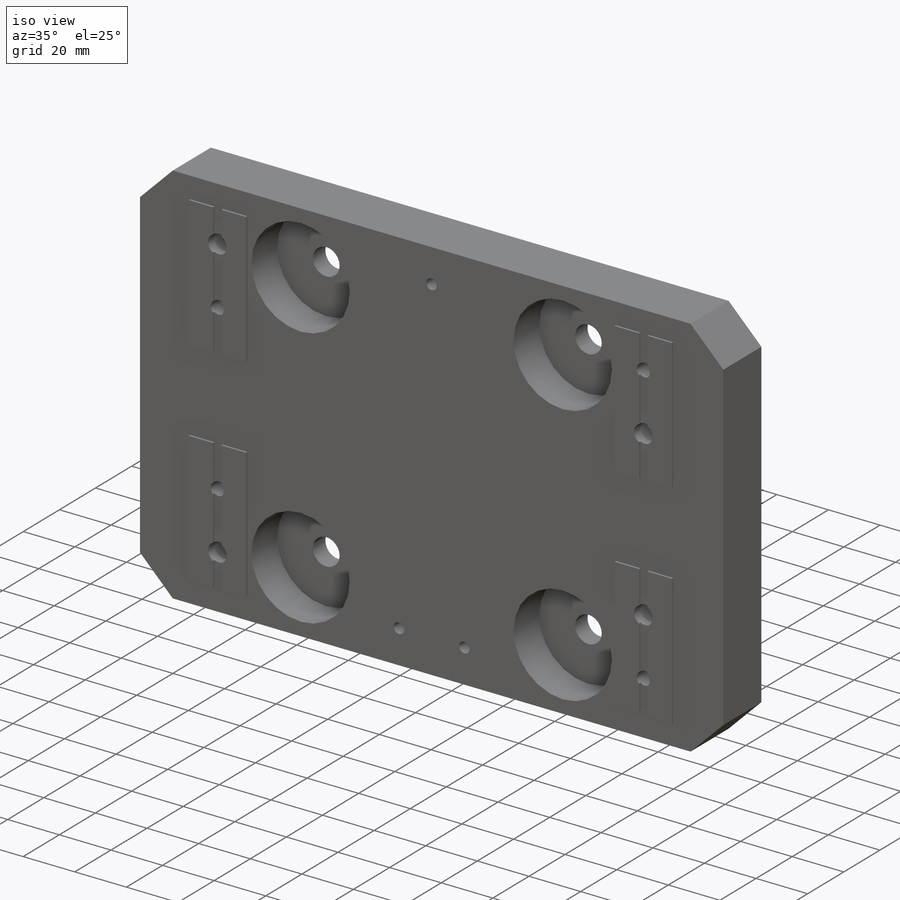
[diagram: iso view]
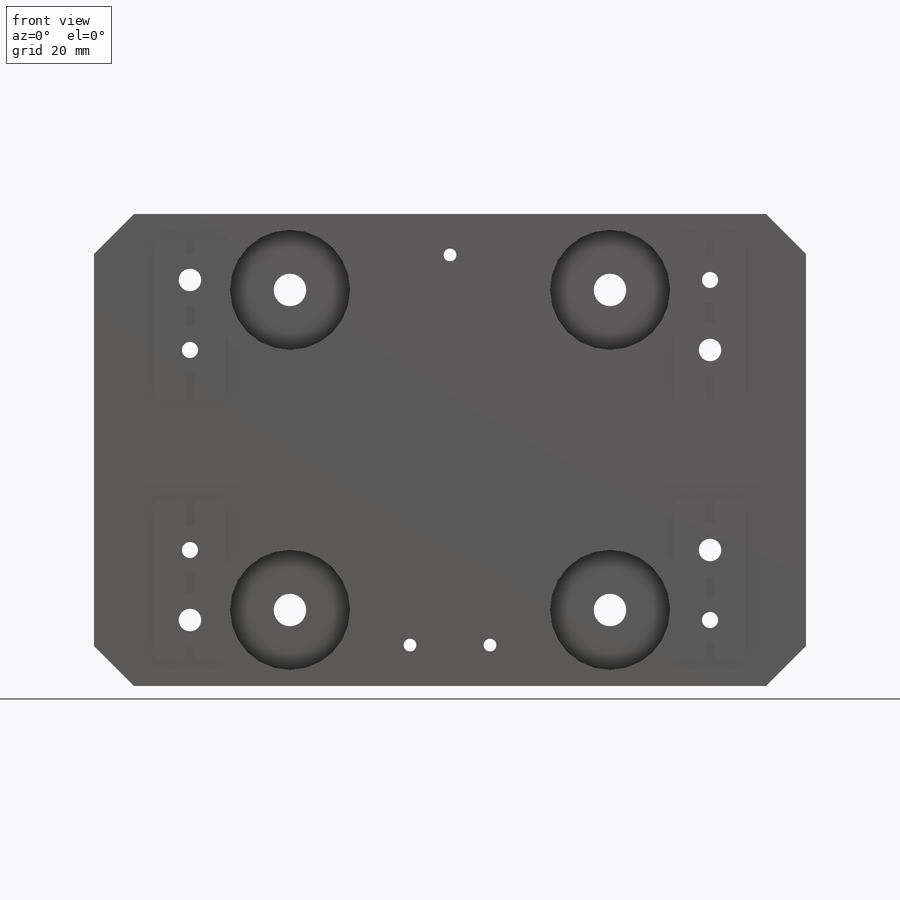
[diagram: front view]
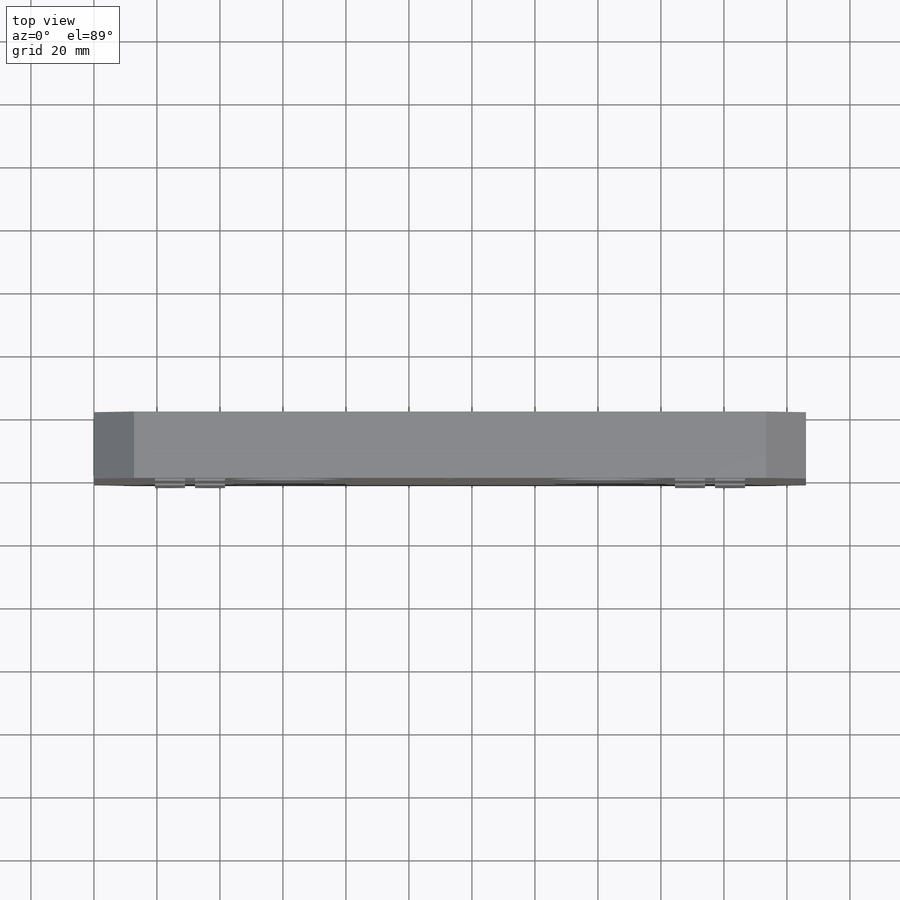
[diagram: top view]
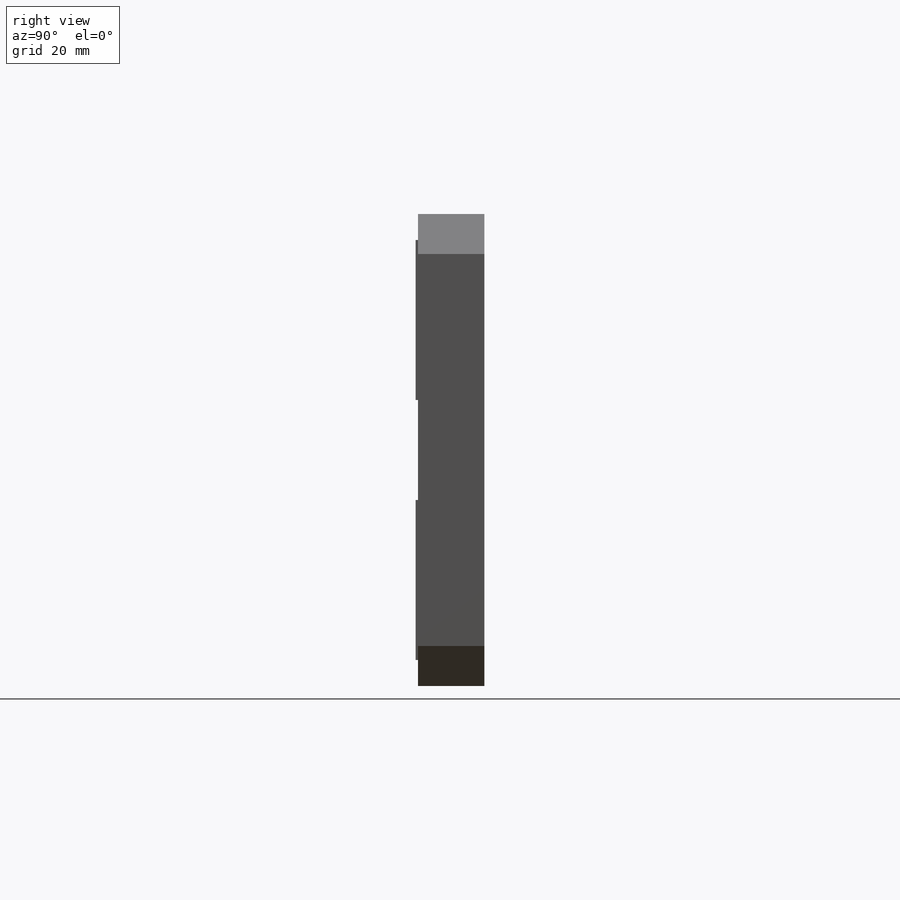
[diagram: right view]
SOLIDWORKS PART (.sldprt)
format: sldprt  version: not decoded by parser v0  size: 581,120 bytes
history: native  units: mm
features: sketch x12, thread x7, hole x4, cut_extrude x2, material x1, extrude x1, chamfer x1 + 1 further entry (+13 scaffold rows collapsed)
feature tree (42):
  scaffold x13  (default folders/planes/origin — collapsed)
  material  "AISI 304"
  "Origin"  ID=-1
  sketch  "Sketch3"  dims[D1=226.06mm D2=149.86mm]
  extrude  "Extrude2"  Depth=21.844mm
  sketch  "Sketch4"  dims[c1.D1=25.4mm c1.D2=25.4mm c1.D3=82.55mm c1.D4=82.55mm c1.D5=41.275mm c2.D3=165.1mm c2.D5=15.875mm c2.D6=15.875mm c2.D7=50.8mm c2.D8=50.8mm c2.D9=71.4248mm c2.D10=71.4248mm c2.D11=25.4mm c2.D12=22.225mm c2.D13=25.4mm c2.D2=25.4mm]
  cut_extrude  "Extrude4"  Depth=0.762mm
  hole  "1/4-20 Tapped Hole1"  Diameter=5.1054mm Depth=21.844mm
  sketch  "Sketch13"  dims[D1=82.55mm D2=82.55mm D3=107.95mm D4=63.5mm]
  sketch  "Sketch12"  dims[hole-wizard template sketch: 60 standard entries collapsed; hole parameters kept: c18.Thru Tap Drill Depth=21.844mm]
  thread  "Hole Thread5"  Diameter=6.35mm  [1 undecoded]
  thread  "Hole Thread6"  Diameter=6.35mm  [1 undecoded]
  thread  "Hole Thread7"  Diameter=6.35mm  [1 undecoded]
  thread  "Hole Thread8"  Diameter=6.35mm  [1 undecoded]
  hole  "CBORE for 3/8 Socket Head Cap Screw1"  Diameter=10.31748mm Depth=21.082mm
  sketch  "Sketch16"  dims[D1=101.6mm D2=101.6mm]
  sketch  "Sketch15"  dims[hole-wizard template sketch: 42 standard entries collapsed; hole parameters kept: c12.Thru Hole Depth=21.082mm c12.C'Bore Dia.=38.1mm c12.C'Bore Depth=14.224mm]
  sketch  "Sketch17"  dims[D1=3.175mm]
  cut_extrude  "Cut-Extrude1"  [1 undecoded]
  hole  "CBORE for 1/4 Socket Head Cap Screw1"  Diameter=7.14248mm Depth=21.844mm
  sketch  "Sketch20"
  sketch  "Sketch19"  dims[hole-wizard template sketch: 42 standard entries collapsed; hole parameters kept: c12.Thru Hole Depth=21.844mm c12.C'Bore Dia.=11.1125mm c12.C'Bore Depth=18.161mm c12.Near C'Sink Dia.=12.3825mm c12.D6=~4.399409mm c12.Near C'Sink Angle=90.0deg]
  sketch  "Sketch23"  dims[c1.D1=63.5mm c1.D2=63.5mm c2.D1=60.325mm c2.D2=12.7mm c2.D3=12.7mm c2.D4=60.325mm c3.D2=12.7mm c3.D3=12.7mm c4.D2=25.4mm c4.D1=15.875mm c4.D4=61.9252mm c5.D1=15.875mm c5.D3=61.9252mm]
  hole  "#10-32 Tapped Hole1"  Diameter=4.0386mm Depth=21.844mm
  sketch  "Sketch22"  dims[D1=76.2mm]
  sketch  "Sketch21"  dims[hole-wizard template sketch: 60 standard entries collapsed; hole parameters kept: c18.Thru Tap Drill Depth=21.844mm]
  thread  "Hole Thread9"  Diameter=12.7mm  [1 undecoded]
  thread  "Hole Thread10"  Diameter=12.7mm  [1 undecoded]
  thread  "Hole Thread11"  Diameter=12.7mm  [1 undecoded]
  chamfer  "Chamfer1"  Distance=12.7mm Angle=45deg
decode coverage: 25 of 27 modeling features carry decoded parameters; 1 rows unclassified (native names shown)
note: ~ marks probable driven/reference dimensions
note: 8 parameter values undecoded
summary: Diameter pulled from absorbed wizard sketch
note: suppression state not decoded; provenance and decode notes live in map.json
